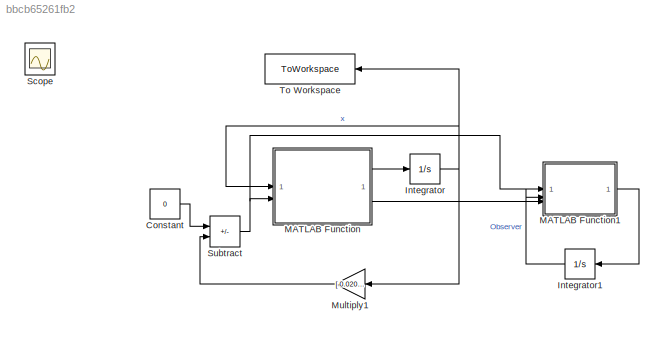
MODEL slx_bbcb65261fb2
KIND model
CONFIG AbsTol = auto
CONFIG EnableMultiTasking = off
CONFIG FixedStep = auto
CONFIG MaxStep = auto
CONFIG MinStep = auto
CONFIG RelTol = 1e-8
CONFIG SampleTimeConstraint = Unconstrained
CONFIG SolverName = VariableStepAuto
CONFIG StartTime = 0.0
CONFIG StopTime = 5
BLOCK [Constant] Constant
  Value = 0
BLOCK [Integrator] Integrator
  IgnoreLimit = on
  InitialCondition = [0; 0.1; 0; 0]
BLOCK [Integrator] Integrator1
  InitialCondition = [0; 0.1; 0; 0]
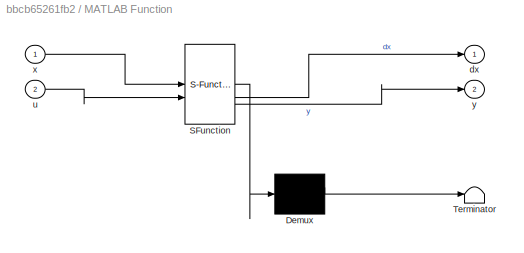
BLOCK [SubSystem] MATLAB Function
  ErrorFcn = Stateflow.Translate.translate
  PermitHierarchicalResolution = ExplicitOnly
  SFBlockType = MATLAB Function
  TreatAsAtomicUnit = on
BLOCK [Demux] MATLAB Function/ Demux 
  Outputs = 1
BLOCK [S-Function] MATLAB Function/ SFunction 
  EnableBusSupport = on
  FunctionName = sf_sfun
  PortCounts = [2 3]
  SFcnIsStateOwnerBlock = off
  SFunctionDeploymentMode = off
  Tag = Stateflow S-Function 2
BLOCK [Terminator] MATLAB Function/ Terminator 
BLOCK [Outport] MATLAB Function/dx
BLOCK [Inport] MATLAB Function/u
  Port = 2
BLOCK [Inport] MATLAB Function/x
BLOCK [Outport] MATLAB Function/y
  Port = 2
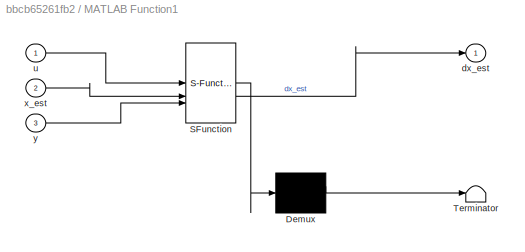
BLOCK [SubSystem] MATLAB Function1
  ErrorFcn = Stateflow.Translate.translate
  LibrarySourceBlock = simulink/User-Defined\nFunctions/MATLAB Function
  PermitHierarchicalResolution = ExplicitOnly
  SFBlockType = MATLAB Function
  TreatAsAtomicUnit = on
BLOCK [Demux] MATLAB Function1/ Demux 
  Outputs = 1
BLOCK [S-Function] MATLAB Function1/ SFunction 
  EnableBusSupport = on
  FunctionName = sf_sfun
  PortCounts = [3 2]
  SFcnIsStateOwnerBlock = off
  SFunctionDeploymentMode = off
  Tag = Stateflow S-Function 1
BLOCK [Terminator] MATLAB Function1/ Terminator 
BLOCK [Outport] MATLAB Function1/dx_est
BLOCK [Inport] MATLAB Function1/u
BLOCK [Inport] MATLAB Function1/x_est
  Port = 2
BLOCK [Inport] MATLAB Function1/y
  Port = 3
BLOCK [Gain] Multiply1
  Gain = [-0.0207957801019633	0.143430567548806	-0.00777706617299729	0.0117650228921239]
  Multiplication = Matrix(K*u)
BLOCK [Scope] Scope
  Floating = off
  IOType = viewer
  NumInputPorts = 1
  ScopeSpecificationString = Simulink.scopes.TimeScopeBlockCfg('CurrentConfiguration', extmgr.ConfigurationSet(extmgr.Configuration('Core','General UI',true),extmgr.Configuration('Core','Source UI',true),extmgr.Configuration('Sources','WiredSimulink',true),extmgr.Configuration('Visuals','Time Domain',true,'SerializedDisplays',{struct('MinYLimReal','0.08415','MaxYLimReal','0.11111','YLabelReal','','MinYLimMag','0.08415','MaxYL...<+1656ch>
BLOCK [Sum] Subtract
  IconShape = rectangular
  Inputs = +-
BLOCK [ToWorkspace] To Workspace
  FixptAsFi = on
  MaxDataPoints = inf
  SampleTime = -1
  SaveFormat = Timeseries
  VariableName = x
LINE Constant:1 -> Subtract:1
LINE Integrator1:1 -> MATLAB Function1:2
NET Integrator:1 -> MATLAB Function:1, Multiply1:1, To Workspace:1
LINE MATLAB Function1:1 -> Integrator1:1
LINE MATLAB Function:1 -> Integrator:1
LINE MATLAB Function:2 -> MATLAB Function1:3
LINE Multiply1:1 -> Subtract:2
NET Subtract:1 -> MATLAB Function1:1, MATLAB Function:2
note: NET lines group one-source signal fan-out (src -> all destinations, sorted); 1:1 wires keep LINE
CHART MATLAB Function1 states=1 transitions=1
  STATE_LABEL 'eML_blk_kernel()'
  STATE_LABEL 'SCRIPT:\nfunction dx_est  = StateObserver(u,x_est,y)\nF = [-13.6162    0.5990    1.0000         0;\n     3.8834  -25.3861         0    1.0000;\n    -3.7884    7.8602  -10.1274   -0.5005;\n    54.6516 -155.1368  -10.0097   -0.8702];\n\n\nB=[ 0;\n    0;\n    10127.4369;\n    10009.6760];\n\nL= [13.6162   -0.5990;\n   -3.8834   25.3861;\n    3.7884  144.1456;\n  -54.6516  419.4448];\n\ndx_est=F*x_est+L*y+B*u;\n'
CHART MATLAB Function states=1 transitions=1
  STATE_LABEL 'eML_blk_kernel()'
  STATE_LABEL 'SCRIPT:\nfunction [dx,y] = servoUpper(x,u)\n%% Motor\n% Resistance\nRm = 8.4;\n% Current-torque (N-m/A)\nkt = 0.042;\n% Back-emf constant (V-s/rad)\nkm = 0.042;\n%\n%% Rotary Arm\n% Mass (kg)\nmr = 0.095;\n% Total length (m)\nr = 0.085;\n% Moment of inertia about pivot (kg-m^2)\nJr = mr*r^2/3;\n% Equivalent Viscous Damping Coefficient (N-m-s/rad)\nbr = 1e-3; % damping tuned heuristically to match QUBE-Sero 2 respon...<+685ch>'
CHART  states=0 transitions=0
CHART  states=0 transitions=0
